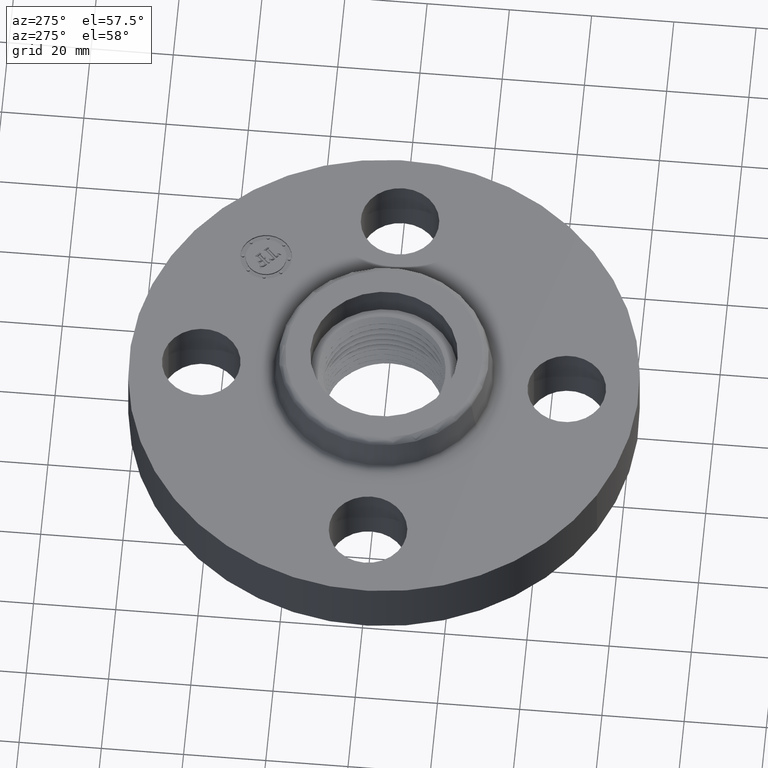
[diagram: clean part render]
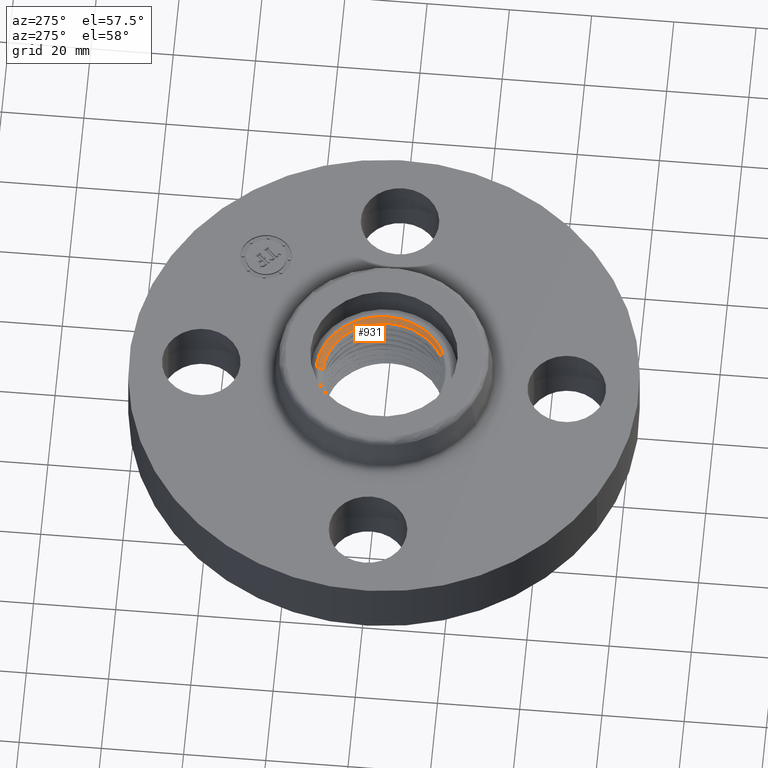
[diagram: same view with one face highlighted and labeled with its STEP entity id]
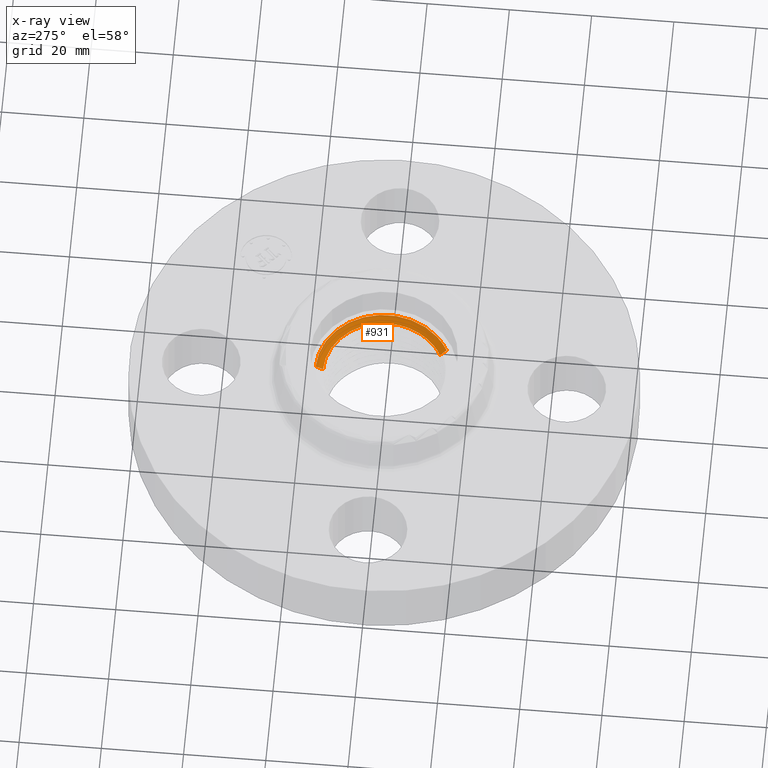
[diagram: x-ray of the same camera — body ghosted, the highlighted face saturated]
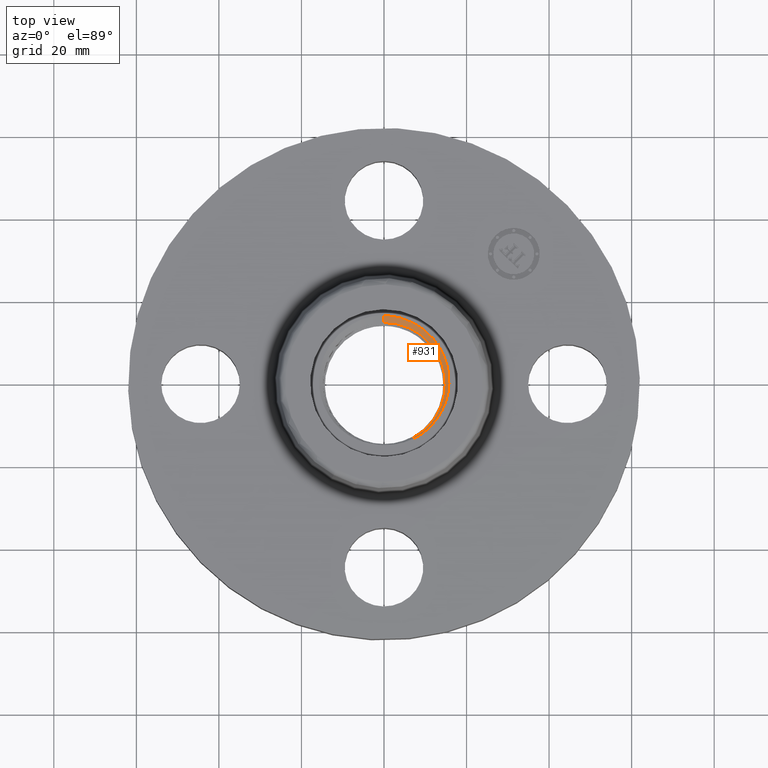
[diagram: same view with one face highlighted and labeled with its STEP entity id]
A machine part, auxiliary view. The second image highlights one B-rep face of the part: STEP entity #931.
The next image is the same camera in x-ray: the body ghosted, the highlighted face saturated — about 0% of this face is hidden behind the body in this view.
A second angle (top view) of the same face is appended — the face is thin or edge-on in the first view.
In plain terms, the highlighted face is a freeform B-spline surface patch.
Its self-contained STEP definition (entity closure, byte-faithful):
#854=CARTESIAN_POINT('Control Point',(1.7882485031E-006,0.583158274545,0.647608144924)) ;
#855=CARTESIAN_POINT('Control Point',(2.0057407968E-006,0.654083019122,0.6889129946)) ;
#856=CARTESIAN_POINT('Control Point',(0.154010184178,0.583043528837,0.643951373293)) ;
#857=CARTESIAN_POINT('Control Point',(0.172741377425,0.653968215979,0.685256222978)) ;
#858=CARTESIAN_POINT('Control Point',(0.307978416337,0.532087950533,0.640293758503)) ;
#859=CARTESIAN_POINT('Control Point',(0.345444876695,0.596829101794,0.681598611698)) ;
#860=CARTESIAN_POINT('Control Point',(0.438923333474,0.430330909107,0.636647632857)) ;
#861=CARTESIAN_POINT('Control Point',(0.492334131538,0.482703616254,0.677952482528)) ;
#862=CARTESIAN_POINT('Control Point',(0.613693396991,0.157057135175,0.629329033217)) ;
#863=CARTESIAN_POINT('Control Point',(0.688403178811,0.176185318947,0.670633882879)) ;
#864=CARTESIAN_POINT('Control Point',(0.591242859824,-0.166537871522,0.622007052538)) ;
#865=CARTESIAN_POINT('Control Point',(0.663250321147,-0.18681581726,0.663311902191)) ;
#866=CARTESIAN_POINT('Control Point',(0.525040124275,-0.318599915264,0.618357585847)) ;
#867=CARTESIAN_POINT('Control Point',(0.588999554515,-0.357406151432,0.659662427091)) ;
#868=CARTESIAN_POINT('Control Point',(0.414227256438,-0.437039922541,0.614694912561)) ;
#869=CARTESIAN_POINT('Control Point',(0.46469722499,-0.490286976567,0.655999762199)) ;
#870=CARTESIAN_POINT('Control Point',(0.279032984142,-0.51076643763,0.611031384911)) ;
#871=CARTESIAN_POINT('Control Point',(0.313034348923,-0.573009723132,0.652336234541)) ;
#873=CARTESIAN_POINT('Control Point',(0.279668067106,-0.511929027735,0.611802883541)) ;
#874=CARTESIAN_POINT('Control Point',(0.313034348923,-0.573009723132,0.652336234541)) ;
#875=CARTESIAN_POINT('Vertex',(0.313034348923,-0.573009723132,0.652336234541)) ;
#877=CARTESIAN_POINT('Vertex',(0.279668067106,-0.511929027735,0.611802883541)) ;
#881=CARTESIAN_POINT('Control Point',(2.0057407968E-006,0.654083019122,0.6889129946)) ;
#882=CARTESIAN_POINT('Control Point',(0.172741377425,0.653968215979,0.685256222978)) ;
#883=CARTESIAN_POINT('Control Point',(0.345444876695,0.596829101794,0.681598611698)) ;
#884=CARTESIAN_POINT('Control Point',(0.492334131538,0.482703616254,0.677952482528)) ;
#885=CARTESIAN_POINT('Control Point',(0.688403178811,0.176185318947,0.670633882879)) ;
#886=CARTESIAN_POINT('Control Point',(0.663250321147,-0.18681581726,0.663311902191)) ;
#887=CARTESIAN_POINT('Control Point',(0.588999554515,-0.357406151432,0.659662427091)) ;
#888=CARTESIAN_POINT('Control Point',(0.46469722499,-0.490286976567,0.655999762199)) ;
#889=CARTESIAN_POINT('Control Point',(0.313034348923,-0.573009723132,0.652336234541)) ;
#890=CARTESIAN_POINT('Vertex',(2.00574079658E-006,0.654083019122,0.6889129946)) ;
#894=CARTESIAN_POINT('Control Point',(1.79231085917E-006,0.584483018338,0.648379643553)) ;
#895=CARTESIAN_POINT('Control Point',(2.0057407968E-006,0.654083019122,0.6889129946)) ;
#896=CARTESIAN_POINT('Vertex',(1.79231085847E-006,0.584483018338,0.648379643553)) ;
#900=CARTESIAN_POINT('Control Point',(1.79231085917E-006,0.584483018338,0.648379643553)) ;
#901=CARTESIAN_POINT('Control Point',(0.0306944213091,0.584460202064,0.647652530292)) ;
#902=CARTESIAN_POINT('Control Point',(0.0613847863763,0.582422704231,0.646925399955)) ;
#903=CARTESIAN_POINT('Control Point',(0.0921173579301,0.578361848947,0.646192992786)) ;
#904=CARTESIAN_POINT('Control Point',(0.153064310442,0.56609809524,0.644723009282)) ;
#905=CARTESIAN_POINT('Control Point',(0.211842667818,0.545895930801,0.643253329346)) ;
#906=CARTESIAN_POINT('Control Point',(0.240402246546,0.533880436548,0.642521225845)) ;
#907=CARTESIAN_POINT('Control Point',(0.323195397223,0.49252208524,0.640332993442)) ;
#908=CARTESIAN_POINT('Control Point',(0.396768058281,0.435421162357,0.638144802526)) ;
#909=CARTESIAN_POINT('Control Point',(0.440563899032,0.390983005734,0.63668266244)) ;
#910=CARTESIAN_POINT('Control Point',(0.515423806652,0.291562001679,0.633757572104)) ;
#911=CARTESIAN_POINT('Control Point',(0.56192283146,0.176082008946,0.630831825484)) ;
#912=CARTESIAN_POINT('Control Point',(0.577370178051,0.115549237594,0.629367777416)) ;
#913=CARTESIAN_POINT('Control Point',(0.591893801642,-0.00810972819179,0.626439646867)) ;
#914=CARTESIAN_POINT('Control Point',(0.573813858485,-0.131237647573,0.623513222756)) ;
#915=CARTESIAN_POINT('Control Point',(0.556651022504,-0.191230813946,0.622050759677)) ;
#916=CARTESIAN_POINT('Control Point',(0.519378347688,-0.276653367168,0.619858567159)) ;
#917=CARTESIAN_POINT('Control Point',(0.466443234949,-0.352634266836,0.617665735047)) ;
#918=CARTESIAN_POINT('Control Point',(0.447117357931,-0.376828327167,0.616933080768)) ;
#919=CARTESIAN_POINT('Control Point',(0.405250389476,-0.422599576438,0.615464360558)) ;
#920=CARTESIAN_POINT('Control Point',(0.357699469004,-0.46244792586,0.613995344771)) ;
#921=CARTESIAN_POINT('Control Point',(0.332682187578,-0.480711291297,0.613262394478)) ;
#922=CARTESIAN_POINT('Control Point',(0.306659663891,-0.497209437374,0.612532648081)) ;
#923=CARTESIAN_POINT('Control Point',(0.279668094357,-0.511929012875,0.611802884278)) ;
#926=ORIENTED_EDGE('',*,*,#879,.F.) ;
#927=ORIENTED_EDGE('',*,*,#892,.F.) ;
#928=ORIENTED_EDGE('',*,*,#898,.T.) ;
#929=ORIENTED_EDGE('',*,*,#924,.T.) ;
#931=ADVANCED_FACE('PartBody',(#930),#853,.T.) ;
#872=B_SPLINE_CURVE_WITH_KNOTS('',1,(#873,#874),.UNSPECIFIED.,.F.,.U.,(2,2),(-1.00342181811,1.04236057529),.UNSPECIFIED.) ;
#880=B_SPLINE_CURVE_WITH_KNOTS('',5,(#881,#882,#883,#884,#885,#886,#887,#888,#889),.UNSPECIFIED.,.F.,.U.,(6,3,6),(0.,20.8092288698,41.6185662106),.UNSPECIFIED.) ;
#893=B_SPLINE_CURVE_WITH_KNOTS('',1,(#894,#895),.UNSPECIFIED.,.F.,.U.,(2,2),(-1.00342181816,1.04236057529),.UNSPECIFIED.) ;
#899=B_SPLINE_CURVE_WITH_KNOTS('',5,(#900,#901,#902,#903,#904,#905,#906,#907,#908,#909,#910,#911,#912,#913,#914,#915,#916,#917,#918,#919,#920,#921,#922,#923),.UNSPECIFIED.,.F.,.U.,(6,3,3,3,3,3,3,6),(0.,5.75809226504,11.5161845301,23.0958801107,34.6824959468,46.2679804058,52.0415773938,57.8151743818),.UNSPECIFIED.) ;
#853=B_SPLINE_SURFACE_WITH_KNOTS('',5,1,((#854,#855),(#856,#857),(#858,#859),(#860,#861),(#862,#863),(#864,#865),(#866,#867),(#868,#869),(#870,#871)),.UNSPECIFIED.,.F.,.F.,.U.,(6,3,6),(2,2),(0.,20.8092288698,41.6185662106),(-1.04236057529,1.04236057529),.UNSPECIFIED.) ;
#879=EDGE_CURVE('',#876,#878,#872,.F.) ;
#892=EDGE_CURVE('',#891,#876,#880,.T.) ;
#898=EDGE_CURVE('',#891,#897,#893,.F.) ;
#924=EDGE_CURVE('',#897,#878,#899,.T.) ;
#925=EDGE_LOOP('',(#926,#927,#928,#929)) ;
#930=FACE_OUTER_BOUND('',#925,.T.) ;
#876=VERTEX_POINT('',#875) ;
#878=VERTEX_POINT('',#877) ;
#891=VERTEX_POINT('',#890) ;
#897=VERTEX_POINT('',#896) ;